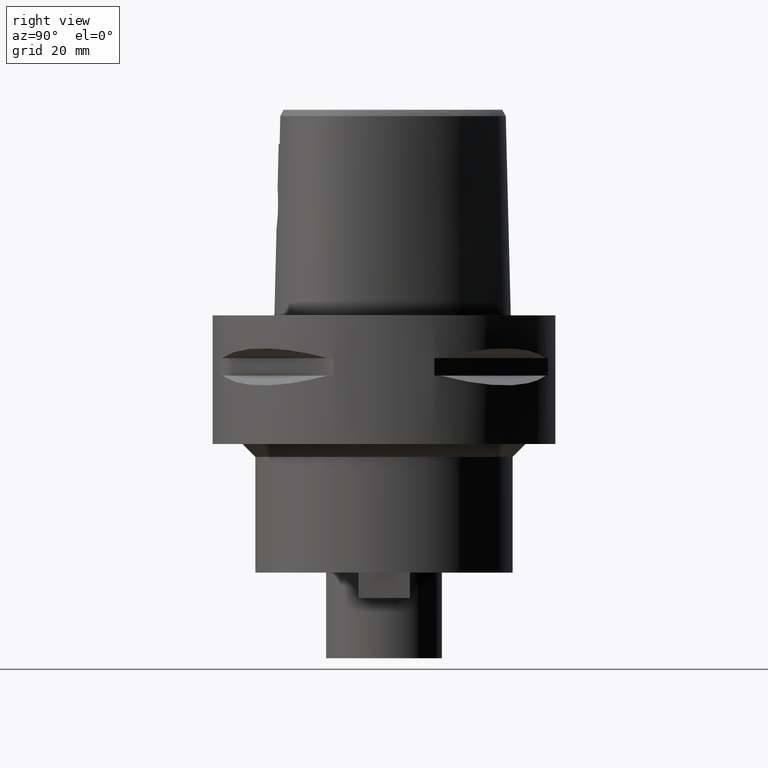
[diagram: clean part render]
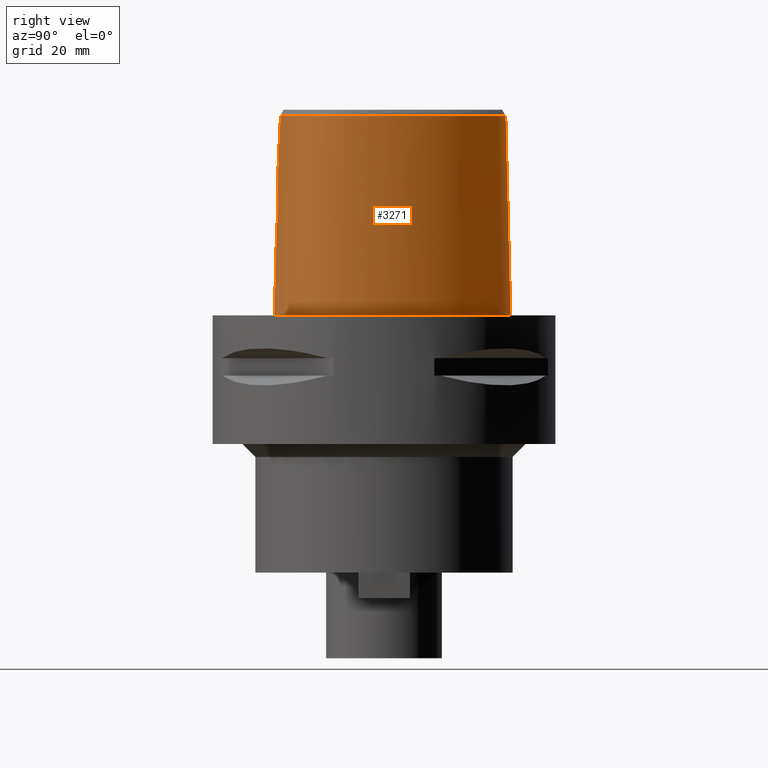
[diagram: same view with one face highlighted and labeled with its STEP entity id]
A machine part, right view. The second image highlights one B-rep face of the part: STEP entity #3271.
In plain terms, the highlighted face is a freeform B-spline surface patch.
Its self-contained STEP definition (entity closure, byte-faithful):
#136=CARTESIAN_POINT('',(4.472216720977E0,-2.420009030094E1,4.652069014669E1));
#146=CARTESIAN_POINT('',(-1.216260473557E-11,2.841206021535E1,
4.652071719451E1));
#147=CARTESIAN_POINT('',(4.415545893382E-1,2.841206021535E1,4.652071719450E1));
#148=CARTESIAN_POINT('',(1.322823104441E0,2.836808115080E1,4.652067649853E1));
#149=CARTESIAN_POINT('',(2.720109230763E0,2.815828204020E1,4.652072088938E1));
#150=CARTESIAN_POINT('',(4.183557750581E0,2.779029673981E1,4.652071754765E1));
#151=CARTESIAN_POINT('',(5.750861056795E0,2.723263615719E1,4.652071835171E1));
#152=CARTESIAN_POINT('',(7.341684710022E0,2.649367807788E1,4.652071475346E1));
#153=CARTESIAN_POINT('',(8.875087808491E0,2.562251754652E1,4.652072414630E1));
#154=CARTESIAN_POINT('',(1.040773538304E1,2.459709153458E1,4.652071049692E1));
#155=CARTESIAN_POINT('',(1.194045083958E1,2.341158136474E1,4.652072779531E1));
#156=CARTESIAN_POINT('',(1.346695889525E1,2.206795477306E1,4.652071156314E1));
#157=CARTESIAN_POINT('',(1.505495597320E1,2.049048899655E1,4.652072274007E1));
#158=CARTESIAN_POINT('',(1.674310346180E1,1.859100224747E1,4.652070980035E1));
#159=CARTESIAN_POINT('',(1.850764406533E1,1.633162336568E1,4.652070509420E1));
#160=CARTESIAN_POINT('',(2.038105197578E1,1.355945436728E1,4.652071560280E1));
#161=CARTESIAN_POINT('',(2.213954306259E1,1.047830973965E1,4.652072427823E1));
#162=CARTESIAN_POINT('',(2.354711184599E1,7.519859838112E0,4.652068835760E1));
#163=CARTESIAN_POINT('',(2.458694492763E1,4.886053966655E0,4.652072598801E1));
#164=CARTESIAN_POINT('',(2.534783832899E1,2.535540280299E0,4.652071308777E1));
#165=CARTESIAN_POINT('',(2.590153974951E1,3.844445907753E-1,4.652071697153E1));
#166=CARTESIAN_POINT('',(2.628778249740E1,-1.623376429774E0,4.652071929559E1));
#167=CARTESIAN_POINT('',(2.652739198053E1,-3.516290843828E0,4.652071347669E1));
#168=CARTESIAN_POINT('',(2.663301229295E1,-5.336490578360E0,4.652071934511E1));
#169=CARTESIAN_POINT('',(2.660374442035E1,-7.110262276815E0,4.652071415193E1));
#170=CARTESIAN_POINT('',(2.643104452538E1,-8.833291585449E0,4.652072247206E1));
#171=CARTESIAN_POINT('',(2.611960397532E1,-1.043617342719E1,4.652071648050E1));
#172=CARTESIAN_POINT('',(2.569250201044E1,-1.187868100317E1,4.652072214611E1));
#173=CARTESIAN_POINT('',(2.516656827431E1,-1.317433136986E1,4.652069826960E1));
#174=CARTESIAN_POINT('',(2.454727160247E1,-1.434998286352E1,4.652073020667E1));
#175=CARTESIAN_POINT('',(2.380811249525E1,-1.546422945724E1,4.652071201782E1));
#176=CARTESIAN_POINT('',(2.290989042146E1,-1.656508058483E1,4.652071977987E1));
#177=CARTESIAN_POINT('',(2.183291590420E1,-1.765040082765E1,4.652071532140E1));
#178=CARTESIAN_POINT('',(2.054904661063E1,-1.871812005741E1,4.652072041820E1));
#179=CARTESIAN_POINT('',(1.911145314270E1,-1.970752258541E1,4.652072015243E1));
#180=CARTESIAN_POINT('',(1.757443280748E1,-2.059197314194E1,4.652071633377E1));
#181=CARTESIAN_POINT('',(1.591493803665E1,-2.139295551550E1,4.652071959752E1));
#182=CARTESIAN_POINT('',(1.411346157731E1,-2.211742101103E1,4.652071871047E1));
#183=CARTESIAN_POINT('',(1.214326407664E1,-2.276796064134E1,4.652071840231E1));
#184=CARTESIAN_POINT('',(9.955370804538E0,-2.334443211442E1,4.652070473091E1));
#185=CARTESIAN_POINT('',(7.461724562064E0,-2.384146001498E1,4.652075158515E1));
#186=CARTESIAN_POINT('',(5.509798957003E0,-2.410076707206E1,4.652065188753E1));
#187=CARTESIAN_POINT('',(4.472216720977E0,-2.420009030094E1,4.652069014669E1));
#265=DIRECTION('',(1.388127436484E-9,-2.499239851702E-2,-9.996876412242E-1));
#266=VECTOR('',#265,1.045326522127E1);
#267=CARTESIAN_POINT('',(-1.451045074373E-8,-2.457504746727E1,
4.000000005214E1));
#268=LINE('',#267,#266);
#286=CARTESIAN_POINT('',(-2.263615543289E-12,-2.506378435149E1,2.045E1));
#291=DIRECTION('',(-7.796123609439E-13,-2.499051295404E-2,-9.996876883619E-1));
#292=VECTOR('',#291,2.045638876829E1);
#293=CARTESIAN_POINT('',(-2.263615543289E-12,-2.506378435149E1,2.045E1));
#294=LINE('',#293,#292);
#314=CARTESIAN_POINT('',(-1.821166908732E-11,-2.5575E1,1.153151648244E-13));
#315=CARTESIAN_POINT('',(1.192821055653E0,-2.5575E1,1.153151648244E-13));
#316=CARTESIAN_POINT('',(3.525349183996E0,-2.548902757929E1,
-5.351795424488E-14));
#317=CARTESIAN_POINT('',(6.912825310533E0,-2.511619650563E1,
1.434009262048E-14));
#318=CARTESIAN_POINT('',(1.004497187474E1,-2.453158542411E1,0.E0));
#319=CARTESIAN_POINT('',(1.287386432149E1,-2.377702036395E1,0.E0));
#320=CARTESIAN_POINT('',(1.537580079497E1,-2.289398296176E1,0.E0));
#321=CARTESIAN_POINT('',(1.755651859818E1,-2.191896893841E1,0.E0));
#322=CARTESIAN_POINT('',(1.943849972190E1,-2.087992687295E1,0.E0));
#323=CARTESIAN_POINT('',(2.105092828690E1,-1.979712690731E1,0.E0));
#324=CARTESIAN_POINT('',(2.242541425188E1,-1.868300201659E1,0.E0));
#325=CARTESIAN_POINT('',(2.359114088534E1,-1.754447305522E1,0.E0));
#326=CARTESIAN_POINT('',(2.457391972965E1,-1.638259768932E1,0.E0));
#327=CARTESIAN_POINT('',(2.539226795979E1,-1.520068025133E1,0.E0));
#328=CARTESIAN_POINT('',(2.607686790874E1,-1.396770442892E1,0.E0));
#329=CARTESIAN_POINT('',(2.665677134541E1,-1.263134999279E1,0.E0));
#330=CARTESIAN_POINT('',(2.713652433866E1,-1.115074177747E1,0.E0));
#331=CARTESIAN_POINT('',(2.749949214118E1,-9.519746786623E0,0.E0));
#332=CARTESIAN_POINT('',(2.773135370400E1,-7.711013373695E0,0.E0));
#333=CARTESIAN_POINT('',(2.780878948255E1,-5.704106805291E0,0.E0));
#334=CARTESIAN_POINT('',(2.770323774128E1,-3.479392949765E0,0.E0));
#335=CARTESIAN_POINT('',(2.738092654947E1,-1.023941730015E0,0.E0));
#336=CARTESIAN_POINT('',(2.680619403250E1,1.661468549130E0,0.E0));
#337=CARTESIAN_POINT('',(2.594661776994E1,4.556224488360E0,0.E0));
#338=CARTESIAN_POINT('',(2.478207501073E1,7.609749501166E0,0.E0));
#339=CARTESIAN_POINT('',(2.331405957827E1,1.074071968055E1,0.E0));
#340=CARTESIAN_POINT('',(2.157367796089E1,1.383978793574E1,0.E0));
#341=CARTESIAN_POINT('',(1.964081764451E1,1.675965873267E1,0.E0));
#342=CARTESIAN_POINT('',(1.759839452629E1,1.939955034533E1,0.E0));
#343=CARTESIAN_POINT('',(1.551965156199E1,2.170575678289E1,0.E0));
#344=CARTESIAN_POINT('',(1.346466472698E1,2.365959059104E1,0.E0));
#345=CARTESIAN_POINT('',(1.147344331622E1,2.527224900749E1,0.E0));
#346=CARTESIAN_POINT('',(9.569300574780E0,2.657103552176E1,0.E0));
#347=CARTESIAN_POINT('',(7.761227124125E0,2.759097920836E1,0.E0));
#348=CARTESIAN_POINT('',(6.048918873098E0,2.836735827590E1,0.E0));
#349=CARTESIAN_POINT('',(4.426415241299E0,2.893214918678E1,0.E0));
#350=CARTESIAN_POINT('',(2.883221972886E0,2.931237260070E1,1.353933006722E-14));
#351=CARTESIAN_POINT('',(1.410617579926E0,2.952903585589E1,
-5.052946771131E-14));
#352=CARTESIAN_POINT('',(4.637224935480E-1,2.957499999999E1,
1.088758712816E-13));
#353=CARTESIAN_POINT('',(4.150874539794E-11,2.957499999999E1,
1.088758712816E-13));
#358=CARTESIAN_POINT('',(4.150874539794E-11,2.957499999999E1,
1.088758712816E-13));
#397=CARTESIAN_POINT('',(-1.821166908732E-11,-2.5575E1,1.153151648244E-13));
#1018=CARTESIAN_POINT('',(-2.263615543289E-12,-2.506378435149E1,2.045E1));
#1019=CARTESIAN_POINT('',(3.954072385964E-1,-2.506378435149E1,2.045E1));
#1020=CARTESIAN_POINT('',(1.186753459268E0,-2.505127021271E1,2.055377441387E1));
#1021=CARTESIAN_POINT('',(2.293901026105E0,-2.499899038356E1,2.101029884895E1));
#1022=CARTESIAN_POINT('',(3.249199742156E0,-2.492423366302E1,2.174038340004E1));
#1023=CARTESIAN_POINT('',(3.983109891139E0,-2.484333493048E1,2.269399437273E1));
#1024=CARTESIAN_POINT('',(4.444902099457E0,-2.477340454867E1,2.380604644136E1));
#1025=CARTESIAN_POINT('',(4.602189725522E0,-2.472804812745E1,2.499792083744E1));
#1026=CARTESIAN_POINT('',(4.446334752733E0,-2.471346400510E1,2.618704469361E1));
#1027=CARTESIAN_POINT('',(3.988616765538E0,-2.472738510881E1,2.729584248229E1));
#1028=CARTESIAN_POINT('',(3.258671858173E0,-2.476043868878E1,2.825013255838E1));
#1029=CARTESIAN_POINT('',(2.303887962671E0,-2.479896037678E1,2.898443751551E1));
#1030=CARTESIAN_POINT('',(1.191549157684E0,-2.482886762172E1,2.944549741629E1));
#1031=CARTESIAN_POINT('',(3.970274391534E-1,-2.483629963748E1,2.955E1));
#1032=CARTESIAN_POINT('',(1.351075727151E-14,-2.483629963748E1,2.955E1));
#1037=CARTESIAN_POINT('',(4.602925666819E0,-2.435121855888E1,4.000000005215E1));
#1038=CARTESIAN_POINT('',(4.588866179295E0,-2.433440439141E1,4.072434907413E1));
#1039=CARTESIAN_POINT('',(4.559961371654E0,-2.430022591468E1,4.217314077647E1));
#1040=CARTESIAN_POINT('',(4.516393969032E0,-2.424985530019E1,4.434670381198E1));
#1041=CARTESIAN_POINT('',(4.487210999458E0,-2.421685509515E1,4.579599754735E1));
#1042=CARTESIAN_POINT('',(4.472216720977E0,-2.420009030094E1,4.652069014669E1));
#1047=DIRECTION('',(1.153348253895E-12,2.499051293969E-2,-9.996876883622E-1));
#1048=VECTOR('',#1047,4.653525069487E1);
#1049=CARTESIAN_POINT('',(-1.216260473557E-11,2.841206021535E1,
4.652071719451E1));
#1050=LINE('',#1049,#1048);
#1054=CARTESIAN_POINT('',(4.602925666819E0,-2.435121855888E1,4.000000005215E1));
#1055=CARTESIAN_POINT('',(4.092928303446E0,-2.440134250249E1,4.000000005215E1));
#1056=CARTESIAN_POINT('',(3.071957671088E0,-2.448406991541E1,3.999999998262E1));
#1057=CARTESIAN_POINT('',(1.536621751535E0,-2.455890147071E1,3.999999998262E1));
#1058=CARTESIAN_POINT('',(5.124223333400E-1,-2.457504746727E1,
4.000000005214E1));
#1059=CARTESIAN_POINT('',(-1.451045074373E-8,-2.457504746727E1,
4.000000005214E1));
#1064=CARTESIAN_POINT('',(-1.451045074373E-8,-2.457504746727E1,
4.000000005214E1));
#1683=VERTEX_POINT('',#136);
#1684=VERTEX_POINT('',#1037);
#1688=CARTESIAN_POINT('',(-1.216260473557E-11,2.841206021535E1,
4.652071719451E1));
#1689=VERTEX_POINT('',#1688);
#1690=VERTEX_POINT('',#358);
#1691=VERTEX_POINT('',#397);
#1692=VERTEX_POINT('',#1064);
#1693=CARTESIAN_POINT('',(1.351075727145E-14,-2.483629963748E1,2.955E1));
#1694=VERTEX_POINT('',#1693);
#1695=VERTEX_POINT('',#286);
#3151=CARTESIAN_POINT('',(-8.532294277660E-1,-2.559082453102E1,
-9.304144806128E-1));
#3152=CARTESIAN_POINT('',(-8.462047059305E-1,-2.518772800908E1,
1.519676985001E1));
#3153=CARTESIAN_POINT('',(-8.391799840950E-1,-2.478463148715E1,
3.132395418063E1));
#3154=CARTESIAN_POINT('',(-8.321552622595E-1,-2.438153496522E1,
4.745113851125E1));
#3155=CARTESIAN_POINT('',(-5.689009026239E-1,-2.559577917794E1,
-9.304144806128E-1));
#3156=CARTESIAN_POINT('',(-5.642169923859E-1,-2.519264564208E1,
1.519676985001E1));
#3157=CARTESIAN_POINT('',(-5.595330821480E-1,-2.478951210623E1,
3.132395418063E1));
#3158=CARTESIAN_POINT('',(-5.548491719101E-1,-2.438637857037E1,
4.745113851125E1));
#3159=CARTESIAN_POINT('',(2.393561154359E0,-2.562160365879E1,
-9.304144806128E-1));
#3160=CARTESIAN_POINT('',(2.373865160383E0,-2.521827242824E1,1.519676985001E1));
#3161=CARTESIAN_POINT('',(2.354169166408E0,-2.481494119769E1,3.132395418063E1));
#3162=CARTESIAN_POINT('',(2.334473172433E0,-2.441160996714E1,4.745113851125E1));
#3163=CARTESIAN_POINT('',(6.695047936517E0,-2.526858194631E1,
-9.304144806128E-1));
#3164=CARTESIAN_POINT('',(6.639625076534E0,-2.486795321036E1,1.519676985001E1));
#3165=CARTESIAN_POINT('',(6.584202216550E0,-2.446732447442E1,3.132395418063E1));
#3166=CARTESIAN_POINT('',(6.528779356567E0,-2.406669573848E1,4.745113851125E1));
#3167=CARTESIAN_POINT('',(1.174634101486E1,-2.415815461104E1,
-9.304144806128E-1));
#3168=CARTESIAN_POINT('',(1.164093423965E1,-2.376831843650E1,1.519676985001E1));
#3169=CARTESIAN_POINT('',(1.153552746443E1,-2.337848226197E1,3.132395418063E1));
#3170=CARTESIAN_POINT('',(1.143012068921E1,-2.298864608744E1,4.745113851125E1));
#3171=CARTESIAN_POINT('',(1.530623779603E1,-2.298697010196E1,
-9.304144806128E-1));
#3172=CARTESIAN_POINT('',(1.515935282105E1,-2.261055604295E1,1.519676985001E1));
#3173=CARTESIAN_POINT('',(1.501246784606E1,-2.223414198395E1,3.132395418063E1));
#3174=CARTESIAN_POINT('',(1.486558287107E1,-2.185772792494E1,4.745113851125E1));
#3175=CARTESIAN_POINT('',(1.856135208401E1,-2.147443746699E1,
-9.304144806128E-1));
#3176=CARTESIAN_POINT('',(1.836798846890E1,-2.111924012250E1,1.519676985001E1));
#3177=CARTESIAN_POINT('',(1.817462485380E1,-2.076404277801E1,3.132395418063E1));
#3178=CARTESIAN_POINT('',(1.798126123870E1,-2.040884543353E1,4.745113851125E1));
#3179=CARTESIAN_POINT('',(2.143542293254E1,-1.961750339139E1,
-9.304144806128E-1));
#3180=CARTESIAN_POINT('',(2.119046239161E1,-1.929498366971E1,1.519676985001E1));
#3181=CARTESIAN_POINT('',(2.094550185069E1,-1.897246394802E1,3.132395418063E1));
#3182=CARTESIAN_POINT('',(2.070054130976E1,-1.864994422633E1,4.745113851125E1));
#3183=CARTESIAN_POINT('',(2.344929528162E1,-1.778045351955E1,
-9.304144806128E-1));
#3184=CARTESIAN_POINT('',(2.315870204997E1,-1.749879694109E1,1.519676985001E1));
#3185=CARTESIAN_POINT('',(2.286810881832E1,-1.721714036262E1,3.132395418063E1));
#3186=CARTESIAN_POINT('',(2.257751558668E1,-1.693548378416E1,4.745113851125E1));
#3187=CARTESIAN_POINT('',(2.479336081457E1,-1.613554022457E1,
-9.304144806128E-1));
#3188=CARTESIAN_POINT('',(2.446791223432E1,-1.589630654030E1,1.519676985001E1));
#3189=CARTESIAN_POINT('',(2.414246365408E1,-1.565707285604E1,3.132395418063E1));
#3190=CARTESIAN_POINT('',(2.381701507384E1,-1.541783917177E1,4.745113851125E1));
#3191=CARTESIAN_POINT('',(2.565830880172E1,-1.481383149364E1,
-9.304144806128E-1));
#3192=CARTESIAN_POINT('',(2.530843714758E1,-1.461183299970E1,1.519676985001E1));
#3193=CARTESIAN_POINT('',(2.495856549344E1,-1.440983450576E1,3.132395418063E1));
#3194=CARTESIAN_POINT('',(2.460869383929E1,-1.420783601181E1,4.745113851125E1));
#3195=CARTESIAN_POINT('',(2.637046814549E1,-1.340391019824E1,
-9.304144806128E-1));
#3196=CARTESIAN_POINT('',(2.600056140840E1,-1.324168030381E1,1.519676985001E1));
#3197=CARTESIAN_POINT('',(2.563065467131E1,-1.307945040938E1,3.132395418063E1));
#3198=CARTESIAN_POINT('',(2.526074793422E1,-1.291722051496E1,4.745113851125E1));
#3199=CARTESIAN_POINT('',(2.712297207990E1,-1.141745865543E1,
-9.304144806128E-1));
#3200=CARTESIAN_POINT('',(2.673375370577E1,-1.130662581552E1,1.519676985001E1));
#3201=CARTESIAN_POINT('',(2.634453533163E1,-1.119579297561E1,3.132395418063E1));
#3202=CARTESIAN_POINT('',(2.595531695750E1,-1.108496013569E1,4.745113851125E1));
#3203=CARTESIAN_POINT('',(2.770696775912E1,-8.754869100846E0,
-9.304144806128E-1));
#3204=CARTESIAN_POINT('',(2.730517726719E1,-8.703986977848E0,1.519676985001E1));
#3205=CARTESIAN_POINT('',(2.690338677527E1,-8.653104854849E0,3.132395418063E1));
#3206=CARTESIAN_POINT('',(2.650159628334E1,-8.602222731851E0,4.745113851125E1));
#3207=CARTESIAN_POINT('',(2.787808443109E1,-5.337383714065E0,
-9.304144806128E-1));
#3208=CARTESIAN_POINT('',(2.747379251450E1,-5.347524336923E0,1.519676985001E1));
#3209=CARTESIAN_POINT('',(2.706950059792E1,-5.357664959781E0,3.132395418063E1));
#3210=CARTESIAN_POINT('',(2.666520868133E1,-5.367805582638E0,4.745113851125E1));
#3211=CARTESIAN_POINT('',(2.756041892250E1,-1.762105663748E0,
-9.304144806128E-1));
#3212=CARTESIAN_POINT('',(2.716099298823E1,-1.823107492118E0,1.519676985001E1));
#3213=CARTESIAN_POINT('',(2.676156705397E1,-1.884109320488E0,3.132395418063E1));
#3214=CARTESIAN_POINT('',(2.636214111971E1,-1.945111148858E0,4.745113851125E1));
#3215=CARTESIAN_POINT('',(2.679474625783E1,1.906447387357E0,
-9.304144806128E-1));
#3216=CARTESIAN_POINT('',(2.640443226243E1,1.802817673167E0,1.519676985001E1));
#3217=CARTESIAN_POINT('',(2.601411826704E1,1.699187958977E0,3.132395418063E1));
#3218=CARTESIAN_POINT('',(2.562380427165E1,1.595558244787E0,4.745113851125E1));
#3219=CARTESIAN_POINT('',(2.523075706191E1,6.836210430604E0,
-9.304144806128E-1));
#3220=CARTESIAN_POINT('',(2.485610465307E1,6.683875466808E0,1.519676985001E1));
#3221=CARTESIAN_POINT('',(2.448145224423E1,6.531540503012E0,3.132395418063E1));
#3222=CARTESIAN_POINT('',(2.410679983539E1,6.379205539216E0,4.745113851125E1));
#3223=CARTESIAN_POINT('',(2.235908247776E1,1.290902243056E1,
-9.304144806128E-1));
#3224=CARTESIAN_POINT('',(2.200846692969E1,1.270659196758E1,1.519676985001E1));
#3225=CARTESIAN_POINT('',(2.165785138161E1,1.250416150459E1,3.132395418063E1));
#3226=CARTESIAN_POINT('',(2.130723583354E1,1.230173104161E1,4.745113851125E1));
#3227=CARTESIAN_POINT('',(1.777103258635E1,1.953703864453E1,
-9.304144806128E-1));
#3228=CARTESIAN_POINT('',(1.745811262573E1,1.927961880596E1,1.519676985001E1));
#3229=CARTESIAN_POINT('',(1.714519266511E1,1.902219896739E1,3.132395418063E1));
#3230=CARTESIAN_POINT('',(1.683227270449E1,1.876477912881E1,4.745113851125E1));
#3231=CARTESIAN_POINT('',(1.323332856299E1,2.406149249911E1,
-9.304144806128E-1));
#3232=CARTESIAN_POINT('',(1.296695409906E1,2.375598709785E1,1.519676985001E1));
#3233=CARTESIAN_POINT('',(1.270057963512E1,2.345048169660E1,3.132395418063E1));
#3234=CARTESIAN_POINT('',(1.243420517119E1,2.314497629535E1,4.745113851125E1));
#3235=CARTESIAN_POINT('',(9.316733117316E0,2.681182150648E1,
-9.304144806128E-1));
#3236=CARTESIAN_POINT('',(9.105791465125E0,2.646675914418E1,1.519676985001E1));
#3237=CARTESIAN_POINT('',(8.894849812934E0,2.612169678189E1,3.132395418063E1));
#3238=CARTESIAN_POINT('',(8.683908160743E0,2.577663441959E1,4.745113851125E1));
#3239=CARTESIAN_POINT('',(6.271543170550E0,2.837237220531E1,
-9.304144806128E-1));
#3240=CARTESIAN_POINT('',(6.114741924091E0,2.799897533415E1,1.519676985001E1));
#3241=CARTESIAN_POINT('',(5.957940677632E0,2.762557846300E1,3.132395418063E1));
#3242=CARTESIAN_POINT('',(5.801139431173E0,2.725218159185E1,4.745113851125E1));
#3243=CARTESIAN_POINT('',(3.154109046525E0,2.936302093384E1,
-9.304144806128E-1));
#3244=CARTESIAN_POINT('',(3.067023398274E0,2.896669974727E1,1.519676985001E1));
#3245=CARTESIAN_POINT('',(2.979937750023E0,2.857037856069E1,3.132395418063E1));
#3246=CARTESIAN_POINT('',(2.892852101772E0,2.817405737411E1,4.745113851125E1));
#3247=CARTESIAN_POINT('',(7.484115207783E-1,2.963215901926E1,
-9.304144806128E-1));
#3248=CARTESIAN_POINT('',(7.265635660405E-1,2.922802203526E1,1.519676985001E1));
#3249=CARTESIAN_POINT('',(7.047156113026E-1,2.882388505127E1,3.132395418063E1));
#3250=CARTESIAN_POINT('',(6.828676565648E-1,2.841974806727E1,4.745113851125E1));
#3251=CARTESIAN_POINT('',(-6.060951003580E-1,2.958848805134E1,
-9.304144806128E-1));
#3252=CARTESIAN_POINT('',(-5.886350998896E-1,2.918561927670E1,
1.519676985001E1));
#3253=CARTESIAN_POINT('',(-5.711750994212E-1,2.878275050206E1,
3.132395418063E1));
#3254=CARTESIAN_POINT('',(-5.537150989528E-1,2.837988172742E1,
4.745113851125E1));
#3255=CARTESIAN_POINT('',(-9.090099844943E-1,2.956867551606E1,
-9.304144806128E-1));
#3256=CARTESIAN_POINT('',(-8.826521035538E-1,2.916640542070E1,
1.519676985001E1));
#3257=CARTESIAN_POINT('',(-8.562942226134E-1,2.876413532533E1,
3.132395418063E1));
#3258=CARTESIAN_POINT('',(-8.299363416729E-1,2.836186522996E1,
4.745113851125E1));
#3259=B_SPLINE_SURFACE_WITH_KNOTS('',3,3,((#3151,#3152,#3153,#3154),(#3155,
#3156,#3157,#3158),(#3159,#3160,#3161,#3162),(#3163,#3164,#3165,#3166),(#3167,
#3168,#3169,#3170),(#3171,#3172,#3173,#3174),(#3175,#3176,#3177,#3178),(#3179,
#3180,#3181,#3182),(#3183,#3184,#3185,#3186),(#3187,#3188,#3189,#3190),(#3191,
#3192,#3193,#3194),(#3195,#3196,#3197,#3198),(#3199,#3200,#3201,#3202),(#3203,
#3204,#3205,#3206),(#3207,#3208,#3209,#3210),(#3211,#3212,#3213,#3214),(#3215,
#3216,#3217,#3218),(#3219,#3220,#3221,#3222),(#3223,#3224,#3225,#3226),(#3227,
#3228,#3229,#3230),(#3231,#3232,#3233,#3234),(#3235,#3236,#3237,#3238),(#3239,
#3240,#3241,#3242),(#3243,#3244,#3245,#3246),(#3247,#3248,#3249,#3250),(#3251,
#3252,#3253,#3254),(#3255,#3256,#3257,#3258)),.UNSPECIFIED.,.F.,.F.,.F.,(4,1,1,
1,1,1,1,1,1,1,1,1,1,1,1,1,1,1,1,1,1,1,1,1,4),(4,4),(-8.851417483078E-3,0.E0,
8.333333333347E-2,1.250000000001E-1,1.666666666668E-1,2.083333333334E-1,2.5E-1,
2.916666666667E-1,3.125E-1,3.333333333333E-1,3.541666666667E-1,3.75E-1,
4.166666666666E-1,4.583333333332E-1,4.999999999999E-1,5.416666666666E-1,
5.833333333331E-1,6.666666666665E-1,7.499999999997E-1,8.333333333330E-1,
8.749999999996E-1,9.166666666663E-1,9.583333333329E-1,1.E0,1.012009199036E0),(
5.143144680975E-9,9.999997376997E-1),.UNSPECIFIED.);
#3260=ORIENTED_EDGE('',*,*,#2620,.F.);
#3261=ORIENTED_EDGE('',*,*,#2604,.F.);
#3262=ORIENTED_EDGE('',*,*,#3143,.T.);
#3263=ORIENTED_EDGE('',*,*,#2600,.F.);
#3265=ORIENTED_EDGE('',*,*,#3264,.F.);
#3266=ORIENTED_EDGE('',*,*,#1901,.T.);
#3267=ORIENTED_EDGE('',*,*,#2193,.F.);
#3268=ORIENTED_EDGE('',*,*,#2594,.T.);
#3269=EDGE_LOOP('',(#3260,#3261,#3262,#3263,#3265,#3266,#3267,#3268));
#3270=FACE_OUTER_BOUND('',#3269,.F.);
#188=B_SPLINE_CURVE_WITH_KNOTS('',3,(#146,#147,#148,#149,#150,#151,#152,#153,
#154,#155,#156,#157,#158,#159,#160,#161,#162,#163,#164,#165,#166,#167,#168,#169,
#170,#171,#172,#173,#174,#175,#176,#177,#178,#179,#180,#181,#182,#183,#184,#185,
#186,#187),.UNSPECIFIED.,.F.,.F.,(4,1,1,1,1,1,1,1,1,1,1,1,1,1,1,1,1,1,1,1,1,1,1,
1,1,1,1,1,1,1,1,1,1,1,1,1,1,1,1,4),(0.E0,2.564102564103E-2,5.128205128205E-2,
7.692307692308E-2,1.025641025641E-1,1.282051282051E-1,1.538461538462E-1,
1.794871794872E-1,2.051282051282E-1,2.307692307692E-1,2.564102564103E-1,
2.820512820513E-1,3.076923076923E-1,3.333333333333E-1,3.589743589744E-1,
3.846153846154E-1,4.102564102564E-1,4.358974358974E-1,4.615384615385E-1,
4.871794871795E-1,5.128205128205E-1,5.384615384615E-1,5.641025641026E-1,
5.897435897436E-1,6.153846153846E-1,6.410256410256E-1,6.666666666667E-1,
6.923076923077E-1,7.179487179487E-1,7.435897435897E-1,7.692307692308E-1,
7.948717948718E-1,8.205128205128E-1,8.461538461538E-1,8.717948717949E-1,
8.974358974359E-1,9.230769230769E-1,9.487179487179E-1,9.743589743590E-1,1.E0),
.UNSPECIFIED.);
#354=B_SPLINE_CURVE_WITH_KNOTS('',3,(#314,#315,#316,#317,#318,#319,#320,#321,
#322,#323,#324,#325,#326,#327,#328,#329,#330,#331,#332,#333,#334,#335,#336,#337,
#338,#339,#340,#341,#342,#343,#344,#345,#346,#347,#348,#349,#350,#351,#352,
#353),.UNSPECIFIED.,.F.,.F.,(4,1,1,1,1,1,1,1,1,1,1,1,1,1,1,1,1,1,1,1,1,1,1,1,1,
1,1,1,1,1,1,1,1,1,1,1,1,4),(0.E0,2.702702702703E-2,5.405405405405E-2,
8.108108108108E-2,1.081081081081E-1,1.351351351351E-1,1.621621621622E-1,
1.891891891892E-1,2.162162162162E-1,2.432432432432E-1,2.702702702703E-1,
2.972972972973E-1,3.243243243243E-1,3.513513513514E-1,3.783783783784E-1,
4.054054054054E-1,4.324324324324E-1,4.594594594595E-1,4.864864864865E-1,
5.135135135135E-1,5.405405405405E-1,5.675675675676E-1,5.945945945946E-1,
6.216216216216E-1,6.486486486486E-1,6.756756756757E-1,7.027027027027E-1,
7.297297297297E-1,7.567567567568E-1,7.837837837838E-1,8.108108108108E-1,
8.378378378378E-1,8.648648648649E-1,8.918918918919E-1,9.189189189189E-1,
9.459459459459E-1,9.729729729730E-1,1.E0),.UNSPECIFIED.);
#1033=B_SPLINE_CURVE_WITH_KNOTS('',3,(#1018,#1019,#1020,#1021,#1022,#1023,#1024,
#1025,#1026,#1027,#1028,#1029,#1030,#1031,#1032),.UNSPECIFIED.,.F.,.F.,(4,1,1,1,
1,1,1,1,1,1,1,1,4),(0.E0,8.333333333333E-2,1.666666666667E-1,2.5E-1,
3.333333333333E-1,4.166666666667E-1,5.E-1,5.833333333333E-1,6.666666666667E-1,
7.5E-1,8.333333333333E-1,9.166666666667E-1,1.E0),.UNSPECIFIED.);
#1043=B_SPLINE_CURVE_WITH_KNOTS('',3,(#1037,#1038,#1039,#1040,#1041,#1042),
.UNSPECIFIED.,.F.,.F.,(4,1,1,4),(0.E0,3.333333333333E-1,6.666666666667E-1,1.E0),
.UNSPECIFIED.);
#1060=B_SPLINE_CURVE_WITH_KNOTS('',3,(#1054,#1055,#1056,#1057,#1058,#1059),
.UNSPECIFIED.,.F.,.F.,(4,1,1,4),(0.E0,3.333333333333E-1,6.666666666667E-1,1.E0),
.UNSPECIFIED.);
#1901=EDGE_CURVE('',#1684,#1683,#1043,.T.);
#2193=EDGE_CURVE('',#1689,#1683,#188,.T.);
#2594=EDGE_CURVE('',#1689,#1690,#1050,.T.);
#2600=EDGE_CURVE('',#1692,#1694,#268,.T.);
#2604=EDGE_CURVE('',#1695,#1691,#294,.T.);
#2620=EDGE_CURVE('',#1691,#1690,#354,.T.);
#3143=EDGE_CURVE('',#1695,#1694,#1033,.T.);
#3264=EDGE_CURVE('',#1684,#1692,#1060,.T.);
#3271=ADVANCED_FACE('',(#3270),#3259,.T.);